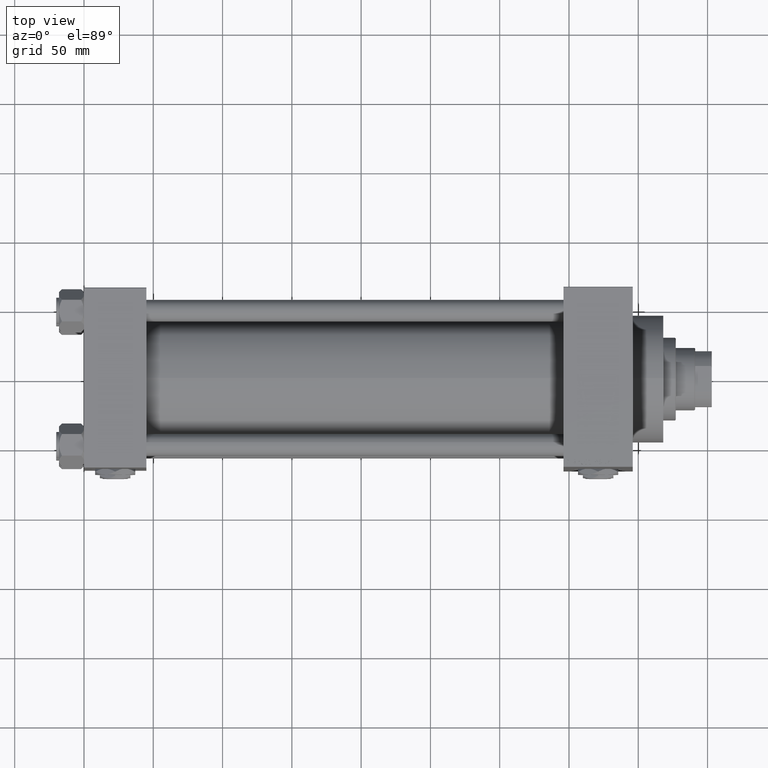
[diagram: clean part render]
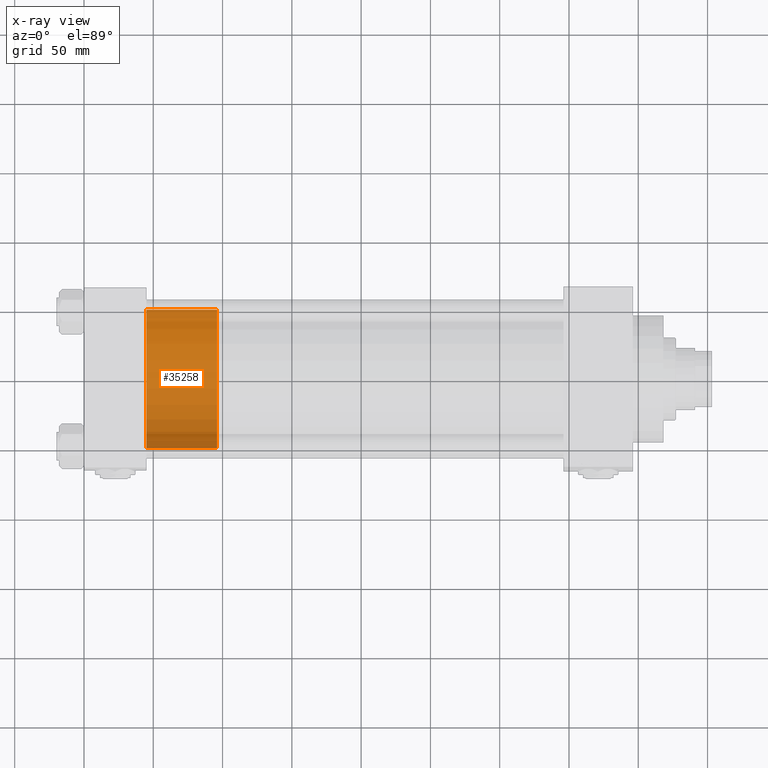
[diagram: x-ray — body ghosted, one internal face saturated and labeled with its STEP entity id]
A machine part, top view, then the same camera in x-ray: the body is ghosted and one INTERNAL B-rep face — a face not visible from any outside direction — is saturated and labeled: STEP entity #35258.
In plain terms, the highlighted cylindrical surface (partial cylindrical patch) has radius 50 mm, axis along (-1, 0, 0).
Its self-contained STEP definition (entity closure, byte-faithful):
#574 = CARTESIAN_POINT ( 'NONE',  ( 0.000000000000000000, 0.000000000000000000, 0.000000000000000000 ) ) ;
#1335 = AXIS2_PLACEMENT_3D ( 'NONE', #574, #15953, #3366 ) ;
#3366 = DIRECTION ( 'NONE',  ( 1.000000000000000000, 0.000000000000000000, 0.000000000000000000 ) ) ;
#4953 = CIRCLE ( 'NONE', #24261, 50.00000000000000000 ) ;
#7833 = ORIENTED_EDGE ( 'NONE', *, *, #40476, .F. ) ;
#12498 = LINE ( 'NONE', #34645, #40722 ) ;
#12988 = EDGE_LOOP ( 'NONE', ( #15297, #26323, #31745, #7833 ) ) ;
#15297 = ORIENTED_EDGE ( 'NONE', *, *, #22979, .F. ) ;
#15605 = VERTEX_POINT ( 'NONE', #27816 ) ;
#15953 = DIRECTION ( 'NONE',  ( 0.000000000000000000, 0.000000000000000000, 1.000000000000000000 ) ) ;
#17814 = CARTESIAN_POINT ( 'NONE',  ( 50.00000000000000000, 6.123233995736766085E-15, 51.00000000000000000 ) ) ;
#22072 = CARTESIAN_POINT ( 'NONE',  ( 0.000000000000000000, 0.000000000000000000, 51.00000000000000000 ) ) ;
#22979 = EDGE_CURVE ( 'NONE', #35989, #15605, #4953, .T. ) ;
#23060 = FACE_OUTER_BOUND ( 'NONE', #12988, .T. ) ;
#24261 = AXIS2_PLACEMENT_3D ( 'NONE', #32331, #48640, #47655 ) ;
#25851 = DIRECTION ( 'NONE',  ( -0.000000000000000000, -0.000000000000000000, -1.000000000000000000 ) ) ;
#26118 = CARTESIAN_POINT ( 'NONE',  ( 50.00000000000000000, 6.123233995736766085E-15, 0.000000000000000000 ) ) ;
#26323 = ORIENTED_EDGE ( 'NONE', *, *, #38624, .T. ) ;
#27816 = CARTESIAN_POINT ( 'NONE',  ( -50.00000000000000000, 0.000000000000000000, 51.00000000000000000 ) ) ;
#28567 = DIRECTION ( 'NONE',  ( -0.000000000000000000, -0.000000000000000000, -1.000000000000000000 ) ) ;
#29618 = CYLINDRICAL_SURFACE ( 'NONE', #30166, 50.00000000000000000 ) ;
#30166 = AXIS2_PLACEMENT_3D ( 'NONE', #22072, #25851, #41196 ) ;
#31745 = ORIENTED_EDGE ( 'NONE', *, *, #38105, .T. ) ;
#31889 = CIRCLE ( 'NONE', #1335, 50.00000000000000000 ) ;
#32232 = VERTEX_POINT ( 'NONE', #44856 ) ;
#32331 = CARTESIAN_POINT ( 'NONE',  ( 0.000000000000000000, 0.000000000000000000, 51.00000000000000000 ) ) ;
#34645 = CARTESIAN_POINT ( 'NONE',  ( 50.00000000000000000, 6.123233995736766085E-15, 51.00000000000000000 ) ) ;
#35258 = ADVANCED_FACE ( 'NONE', ( #23060 ), #29618, .T. ) ;
#35989 = VERTEX_POINT ( 'NONE', #17814 ) ;
#37351 = VERTEX_POINT ( 'NONE', #26118 ) ;
#38105 = EDGE_CURVE ( 'NONE', #37351, #32232, #31889, .T. ) ;
#38624 = EDGE_CURVE ( 'NONE', #35989, #37351, #12498, .T. ) ;
#38908 = DIRECTION ( 'NONE',  ( -0.000000000000000000, -0.000000000000000000, -1.000000000000000000 ) ) ;
#39381 = LINE ( 'NONE', #46935, #45601 ) ;
#40476 = EDGE_CURVE ( 'NONE', #15605, #32232, #39381, .T. ) ;
#40722 = VECTOR ( 'NONE', #38908, 1000.000000000000000 ) ;
#41196 = DIRECTION ( 'NONE',  ( -1.000000000000000000, 0.000000000000000000, 0.000000000000000000 ) ) ;
#44856 = CARTESIAN_POINT ( 'NONE',  ( -50.00000000000000000, 0.000000000000000000, 0.000000000000000000 ) ) ;
#45601 = VECTOR ( 'NONE', #28567, 1000.000000000000000 ) ;
#46935 = CARTESIAN_POINT ( 'NONE',  ( -50.00000000000000000, 0.000000000000000000, 51.00000000000000000 ) ) ;
#47655 = DIRECTION ( 'NONE',  ( 1.000000000000000000, 0.000000000000000000, 0.000000000000000000 ) ) ;
#48640 = DIRECTION ( 'NONE',  ( 0.000000000000000000, 0.000000000000000000, 1.000000000000000000 ) ) ;